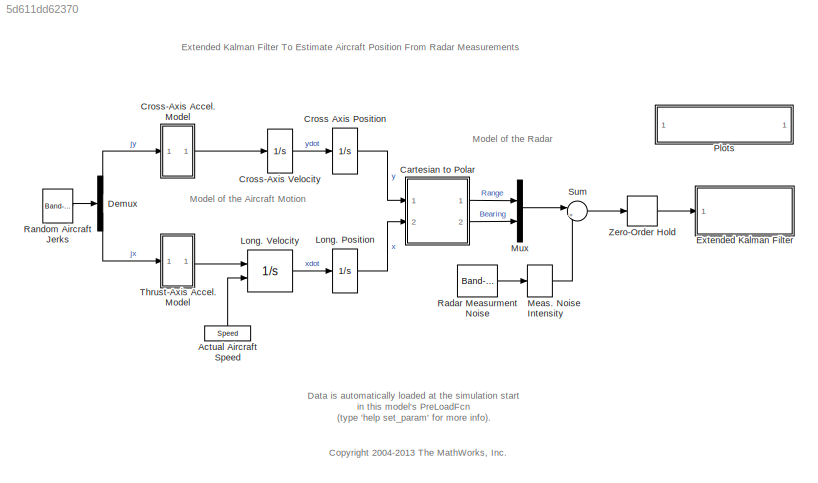
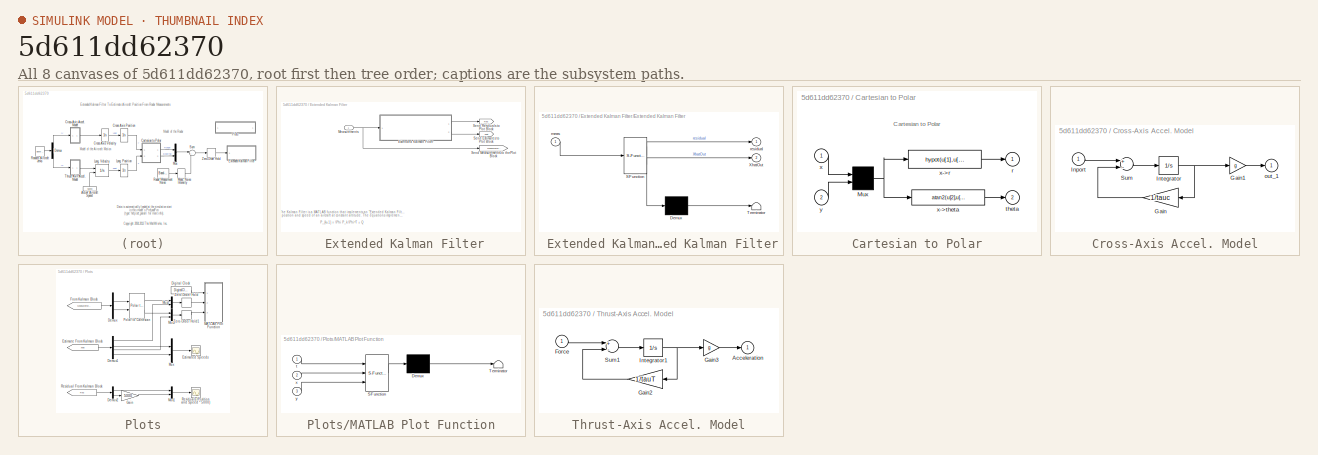
[diagram: thumbnail index - all 8 canvases of the model, root first then tree order]
MODEL slx_5d611dd62370
KIND model
CONFIG AbsTol = 1e-6
CONFIG FixedStep = 0.1
CONFIG MaxStep = 0.1
CONFIG MinStep = auto
CONFIG PreLoadFcn = %Initialization data\ng = 32.2;    % Acceleration due to gravity (ft/sec^2)\ntauc = 5;    % Correlation time of aircraft cross axis acceleration\ntauT = 4;    % Correlation time of aircraft thrust axis acceleration\nSpeed = 400; % Initial speed of aircraft in y direction feet/sec\ndeltat = 1;  % Radar update rate (also hard-coded in extkalman.m)
CONFIG RelTol = 1e-3
CONFIG SampleTimeConstraint = Unconstrained
CONFIG Solver = ode5
CONFIG SolverMode = SingleTasking
CONFIG SolverName = ode5
CONFIG StartTime = 0.0
CONFIG StopTime = 200
BLOCK [SubSystem]  Extended Kalman Filter
  Ports = [1]
  RequestExecContextInheritance = off
  Variant = off
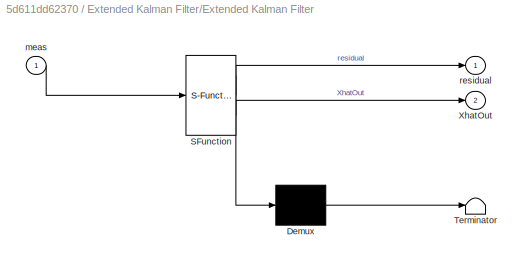
BLOCK [SubSystem]  Extended Kalman Filter/Extended Kalman Filter
  ErrorFcn = Stateflow.Translate.translate
  PermitHierarchicalResolution = ParametersOnly
  Ports = [1, 2]
  RequestExecContextInheritance = off
  SFBlockType = MATLAB Function
  TreatAsAtomicUnit = on
  Variant = off
BLOCK [Demux]  Extended Kalman Filter/Extended Kalman Filter/ Demux 
  Outputs = 1
  Ports = [1, 1]
BLOCK [S-Function]  Extended Kalman Filter/Extended Kalman Filter/ SFunction 
  EnableBusSupport = off
  FunctionName = sf_sfun
  Parameters = deltat
  PortCounts = [1 3]
  Ports = [1, 3]
  SFunctionDeploymentMode = off
  Tag = Stateflow S-Function eml_aero_radar_tmp 1
BLOCK [Terminator]  Extended Kalman Filter/Extended Kalman Filter/ Terminator 
BLOCK [Outport]  Extended Kalman Filter/Extended Kalman Filter/XhatOut
  IconDisplay = Port number
  Port = 2
BLOCK [Inport]  Extended Kalman Filter/Extended Kalman Filter/meas
  IconDisplay = Port number
BLOCK [Outport]  Extended Kalman Filter/Extended Kalman Filter/residual
  IconDisplay = Port number
BLOCK [Inport]  Extended Kalman Filter/Measurements
  IconDisplay = Port number
BLOCK [Goto]  Extended Kalman Filter/Send Estimates to Plot Block
  GotoTag = Xhat
  TagVisibility = global
BLOCK [Goto]  Extended Kalman Filter/Send Measurements to thePlot Block
  GotoTag = Measurements
  IconDisplay = Tag and signal name
  TagVisibility = global
BLOCK [Goto]  Extended Kalman Filter/Send Residuals to Plot Block
  GotoTag = Res
  TagVisibility = global
BLOCK [Constant] Actual Aircraft Speed
  Value = Speed
BLOCK [SubSystem] Cartesian to Polar
  Ports = [2, 2]
  RequestExecContextInheritance = off
  ShowPortLabels = none
  Variant = off
BLOCK [Mux] Cartesian to Polar/Mux
  Inputs = 2
  Ports = [2, 1]
BLOCK [Outport] Cartesian to Polar/r
  IconDisplay = Port number
  InitialOutput = 0
BLOCK [Outport] Cartesian to Polar/theta
  IconDisplay = Port number
  InitialOutput = 0
  Port = 2
BLOCK [Inport] Cartesian to Polar/x
  IconDisplay = Port number
BLOCK [Fcn] Cartesian to Polar/x->r
  Expr = hypot(u[1],u[2])
BLOCK [Fcn] Cartesian to Polar/x->theta
  Expr = atan2(u[2],u[1])
BLOCK [Inport] Cartesian to Polar/y
  IconDisplay = Port number
  Port = 2
BLOCK [Integrator] Cross Axis Position
  Ports = [1, 1]
BLOCK [SubSystem] Cross-Axis Accel. Model
  Ports = [1, 1]
  RequestExecContextInheritance = off
  ShowPortLabels = none
  Variant = off
BLOCK [Gain] Cross-Axis Accel. Model/Gain
  Gain = 1/tauc
BLOCK [Gain] Cross-Axis Accel. Model/Gain1
  Gain = g
BLOCK [Inport] Cross-Axis Accel. Model/Inport
  IconDisplay = Port number
BLOCK [Integrator] Cross-Axis Accel. Model/Integrator
  Ports = [1, 1]
BLOCK [Sum] Cross-Axis Accel. Model/Sum
  Inputs = +-
  Ports = [2, 1]
BLOCK [Outport] Cross-Axis Accel. Model/out_1
  IconDisplay = Port number
  InitialOutput = 0
BLOCK [Integrator] Cross-Axis Velocity
  Ports = [1, 1]
BLOCK [Demux] Demux
  Outputs = 2
  Ports = [1, 2]
BLOCK [Integrator] Long. Position
  Ports = [1, 1]
BLOCK [Integrator] Long. Velocity
  InitialConditionSource = external
  Ports = [2, 1]
BLOCK [StateSpace] Meas. Noise Intensity
  A = []
  B = []
  C = []
  D = K
  Ports = [1, 1]
  X0 = 0
BLOCK [Mux] Mux
  DisplayOption = bar
  Inputs = 2
  Ports = [2, 1]
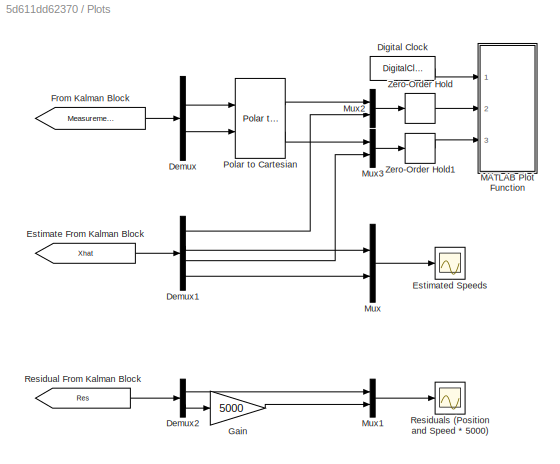
BLOCK [SubSystem] Plots
  Ports = []
  RequestExecContextInheritance = off
  Variant = off
BLOCK [Demux] Plots/Demux
  DisplayOption = bar
  Outputs = 2
  Ports = [1, 2]
BLOCK [Demux] Plots/Demux1
  DisplayOption = bar
  Ports = [1, 4]
BLOCK [Demux] Plots/Demux2
  DisplayOption = bar
  Outputs = 2
  Ports = [1, 2]
BLOCK [DigitalClock] Plots/Digital Clock
  SampleTime = deltat*5
BLOCK [From] Plots/Estimate From Kalman Block
  CloseFcn = tagdialog Close
  GotoTag = Xhat
  IconDisplay = Tag and signal name
BLOCK [Scope] Plots/Estimated Speeds
  DataFormat = StructureWithTime
  Decimation = 1
  Grid = on
  LimitDataPoints = on
  MaxDataPoints = 5000
  NumInputPorts = 1
  Ports = [1]
  SampleInput = off
  SampleTime = -1
  SaveName = ScopeData1
  SaveToWorkspace = off
  ShowLegends = off
  TickLabels = OneTimeTick
  TimeRange = 200
  YMax = 500
  YMin = -100
  ZoomMode = on
BLOCK [From] Plots/From Kalman Block
  CloseFcn = tagdialog Close
  GotoTag = Measurements
  IconDisplay = Tag and signal name
BLOCK [Gain] Plots/Gain
  Gain = 5000
  OutDataTypeStr = Inherit: Inherit via internal rule
  ParamDataTypeStr = Inherit: Inherit via internal rule
  SaturateOnIntegerOverflow = off
BLOCK [SubSystem] Plots/MATLAB Plot Function
  ErrorFcn = Stateflow.Translate.translate
  PermitHierarchicalResolution = ParametersOnly
  Ports = [3]
  RequestExecContextInheritance = off
  SFBlockType = MATLAB Function
  TreatAsAtomicUnit = on
  Variant = off
BLOCK [Demux] Plots/MATLAB Plot Function/ Demux 
  Outputs = 1
  Ports = [1, 1]
BLOCK [S-Function] Plots/MATLAB Plot Function/ SFunction 
  EnableBusSupport = off
  FunctionName = sf_sfun
  PortCounts = [3 1]
  Ports = [3, 1]
  SFunctionDeploymentMode = off
  Tag = Stateflow S-Function eml_aero_radar_tmp 2
BLOCK [Terminator] Plots/MATLAB Plot Function/ Terminator 
BLOCK [Inport] Plots/MATLAB Plot Function/t
  IconDisplay = Port number
BLOCK [Inport] Plots/MATLAB Plot Function/x
  IconDisplay = Port number
  Port = 2
BLOCK [Inport] Plots/MATLAB Plot Function/y
  IconDisplay = Port number
  Port = 3
BLOCK [Mux] Plots/Mux
  DisplayOption = bar
  Inputs = 2
  Ports = [2, 1]
BLOCK [Mux] Plots/Mux1
  DisplayOption = bar
  Inputs = 2
  Ports = [2, 1]
BLOCK [Mux] Plots/Mux2
  DisplayOption = bar
  Inputs = 2
  Ports = [2, 1]
BLOCK [Mux] Plots/Mux3
  DisplayOption = bar
  Inputs = 2
  Ports = [2, 1]
BLOCK [Reference] Plots/Polar to Cartesian  REF=simulink_extras/Transformations/Polar to
Cartesian
  Ports = [2, 2]
  SourceBlock = simulink_extras/Transformations/Polar to\nCartesian
  SourceType = Polar2Cart
BLOCK [From] Plots/Residual From Kalman Block
  CloseFcn = tagdialog Close
  GotoTag = Res
  IconDisplay = Tag and signal name
BLOCK [Scope] Plots/Residuals (Position and Speed * 5000)
  DataFormat = StructureWithTime
  Decimation = 1
  Grid = on
  LimitDataPoints = on
  MaxDataPoints = 5000
  NumInputPorts = 1
  Ports = [1]
  SampleInput = off
  SampleTime = -1
  SaveName = ScopeData
  SaveToWorkspace = off
  ShowLegends = off
  TickLabels = OneTimeTick
  TimeRange = 200
  YMax = 6000
  YMin = -8000
  ZoomMode = on
BLOCK [ZeroOrderHold] Plots/Zero-Order Hold
  SampleTime = deltat*2
BLOCK [ZeroOrderHold] Plots/Zero-Order Hold1
  SampleTime = deltat*2
BLOCK [Reference] Radar Measurment Noise  REF=simulink/Sources/Band-Limited
White Noise
  Cov = [1 1]
  Ports = [0, 1]
  SourceBlock = simulink/Sources/Band-Limited\nWhite Noise
  SourceType = Band-Limited White Noise.
  Ts = 0.1
  VectorParams1D = on
  seed = [52341 62341]
BLOCK [Reference] Random Aircraft Jerks  REF=simulink/Sources/Band-Limited
White Noise
  Cov = [0.004 .001]
  Ports = [0, 1]
  SourceBlock = simulink/Sources/Band-Limited\nWhite Noise
  SourceType = Band-Limited White Noise.
  Ts = 0.1
  VectorParams1D = on
  seed = [12345 21343]
BLOCK [Sum] Sum
  IconShape = round
  Inputs = |++
  Ports = [2, 1]
BLOCK [SubSystem] Thrust-Axis Accel. Model
  Ports = [1, 1]
  RequestExecContextInheritance = off
  ShowPortLabels = none
  Variant = off
BLOCK [Outport] Thrust-Axis Accel. Model/Acceleration
  IconDisplay = Port number
  InitialOutput = 0
BLOCK [Inport] Thrust-Axis Accel. Model/Force
  IconDisplay = Port number
BLOCK [Gain] Thrust-Axis Accel. Model/Gain2
  Gain = 1/tauT
BLOCK [Gain] Thrust-Axis Accel. Model/Gain3
  Gain = g
BLOCK [Integrator] Thrust-Axis Accel. Model/Integrator1
  Ports = [1, 1]
BLOCK [Sum] Thrust-Axis Accel. Model/Sum1
  Inputs = +-
  Ports = [2, 1]
BLOCK [ZeroOrderHold] Zero-Order Hold
  SampleTime = deltat
ANNOTATION (root): <copyright redacted>
ANNOTATION (root): Data is automatically loaded at the simulation start in this model's PreLoadFcn (type 'help set_param' for more info).
ANNOTATION (root): Extended Kalman Filter To Estimate Aircraft Position From Radar Measurements
ANNOTATION (root): Model of the Aircraft Motion
ANNOTATION (root): Model of the Radar
ANNOTATION  Extended Kalman Filter: The Kalman Filter is a MATLAB function that implements an "Extended Kalman Filter" for tracking the position and speed of an aircraft at constant altitude. The equations implemented using MATLAB matrix notation are: P_{k+1} = \Phi P_k \Phi^T + Q xhat(k+1) = \Phi xhat(k) yhat(k+1) = [ sqrt (xhat(k+1)_1^2+xhat(k+1)_3^2) ; tan^{-1} (xhat(k+1)_3 / xhat(k+1)_1) ] M = [ cos(yhat(k+1)_1) 0 sin(yhat(k+1)_...<+393ch>
ANNOTATION Cartesian to Polar: Cartesian to Polar
LINE  Extended Kalman Filter/Extended Kalman Filter:1 ->  Extended Kalman Filter/Send Residuals to Plot Block:1
LINE  Extended Kalman Filter/Extended Kalman Filter:2 ->  Extended Kalman Filter/Send Estimates to Plot Block:1
NET  Extended Kalman Filter/Measurements:1 ->  Extended Kalman Filter/Extended Kalman Filter:1,  Extended Kalman Filter/Send Measurements to thePlot Block:1
LINE Actual Aircraft Speed:1 -> Long. Velocity:2
NET Cartesian to Polar/Mux:1 -> Cartesian to Polar/x->r:1, Cartesian to Polar/x->theta:1
LINE Cartesian to Polar/x->r:1 -> Cartesian to Polar/r:1
LINE Cartesian to Polar/x->theta:1 -> Cartesian to Polar/theta:1
LINE Cartesian to Polar/x:1 -> Cartesian to Polar/Mux:1
LINE Cartesian to Polar/y:1 -> Cartesian to Polar/Mux:2
LINE Cartesian to Polar:1 -> Mux:1
LINE Cartesian to Polar:2 -> Mux:2
LINE Cross Axis Position:1 -> Cartesian to Polar:1
LINE Cross-Axis Accel. Model/Gain1:1 -> Cross-Axis Accel. Model/out_1:1
LINE Cross-Axis Accel. Model/Gain:1 -> Cross-Axis Accel. Model/Sum:2
LINE Cross-Axis Accel. Model/Inport:1 -> Cross-Axis Accel. Model/Sum:1
NET Cross-Axis Accel. Model/Integrator:1 -> Cross-Axis Accel. Model/Gain1:1, Cross-Axis Accel. Model/Gain:1
LINE Cross-Axis Accel. Model/Sum:1 -> Cross-Axis Accel. Model/Integrator:1
LINE Cross-Axis Accel. Model:1 -> Cross-Axis Velocity:1
LINE Cross-Axis Velocity:1 -> Cross Axis Position:1
LINE Demux:1 -> Cross-Axis Accel. Model:1
LINE Demux:2 -> Thrust-Axis Accel. Model:1
LINE Long. Position:1 -> Cartesian to Polar:2
LINE Long. Velocity:1 -> Long. Position:1
LINE Meas. Noise Intensity:1 -> Sum:2
LINE Mux:1 -> Sum:1
LINE Plots/Demux1:1 -> Plots/Mux2:2
LINE Plots/Demux1:2 -> Plots/Mux:1
LINE Plots/Demux1:3 -> Plots/Mux3:2
LINE Plots/Demux1:4 -> Plots/Mux:2
LINE Plots/Demux2:1 -> Plots/Mux1:1
LINE Plots/Demux2:2 -> Plots/Gain:1
LINE Plots/Demux:1 -> Plots/Polar to Cartesian:1
LINE Plots/Demux:2 -> Plots/Polar to Cartesian:2
LINE Plots/Digital Clock:1 -> Plots/MATLAB Plot Function:1
LINE Plots/Estimate From Kalman Block:1 -> Plots/Demux1:1
LINE Plots/From Kalman Block:1 -> Plots/Demux:1
LINE Plots/Gain:1 -> Plots/Mux1:2
LINE Plots/Mux1:1 -> Plots/Residuals (Position and Speed * 5000):1
LINE Plots/Mux2:1 -> Plots/Zero-Order Hold:1
LINE Plots/Mux3:1 -> Plots/Zero-Order Hold1:1
LINE Plots/Mux:1 -> Plots/Estimated Speeds:1
LINE Plots/Polar to Cartesian:1 -> Plots/Mux2:1
LINE Plots/Polar to Cartesian:2 -> Plots/Mux3:1
LINE Plots/Residual From Kalman Block:1 -> Plots/Demux2:1
LINE Plots/Zero-Order Hold1:1 -> Plots/MATLAB Plot Function:3
LINE Plots/Zero-Order Hold:1 -> Plots/MATLAB Plot Function:2
LINE Radar Measurment Noise:1 -> Meas. Noise Intensity:1
LINE Random Aircraft Jerks:1 -> Demux:1
LINE Sum:1 -> Zero-Order Hold:1
LINE Thrust-Axis Accel. Model/Force:1 -> Thrust-Axis Accel. Model/Sum1:1
LINE Thrust-Axis Accel. Model/Gain2:1 -> Thrust-Axis Accel. Model/Sum1:2
LINE Thrust-Axis Accel. Model/Gain3:1 -> Thrust-Axis Accel. Model/Acceleration:1
NET Thrust-Axis Accel. Model/Integrator1:1 -> Thrust-Axis Accel. Model/Gain2:1, Thrust-Axis Accel. Model/Gain3:1
LINE Thrust-Axis Accel. Model/Sum1:1 -> Thrust-Axis Accel. Model/Integrator1:1
LINE Thrust-Axis Accel. Model:1 -> Long. Velocity:1
LINE Zero-Order Hold:1 ->  Extended Kalman Filter:1
note: NET lines group one-source signal fan-out (src -> all destinations, sorted); 1:1 wires keep LINE
CHART 
Extended Kalman Filter/Extended Kalman Filter states=1 transitions=1
  STATE_LABEL 'eML_blk_kernel()'
  STATE_LABEL 'SCRIPT:\nfunction [residual, XhatOut] = AERO_EXTKALMAN(meas, deltat)\n%AERO_EXTKALMAN Radar Data Processing Tracker Using an Extended Kalman Filter\n%\n%  This program is executed as an MATLAB Function block in the aero_radmod\n%  Simulink model. The estimated and actual positions are plotted as the\n%  simulation runs using an additional MATLAB function.\n%\n%  Compare the equations shown in the "eml_aer...<+1428ch>'
CHART Plots/MATLAB
Plot Function states=1 transitions=1
  STATE_LABEL 'eML_blk_kernel()'
  STATE_LABEL "SCRIPT:\nfunction fcn(t,x,y)\n\ncoder.extrinsic('hold','clf','axis','plot','title','text','grid');\n\nif t == 0\n    hold('off'); clf;\n    axis([-10000 30000 -10000 80000]); hold('on')\n    plot([-10000 30000],[0 0])\n    plot([0 0],[-10000 80000])\n    title('\\bf{Kalman Filter Using MATLAB}')\n    text(-40000,-25000,'\\rm\\it{Position Measurements (Blue) & Position Estimates (Red)}')\n    grid('on')\n   \nend\np...<+102ch>"
